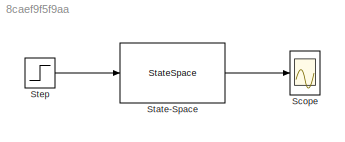
MODEL slx_8caef9f5f9aa
KIND model
CONFIG AbsTol = auto
CONFIG EnableMultiTasking = off
CONFIG FixedStep = auto
CONFIG MaxStep = auto
CONFIG MinStep = auto
CONFIG RelTol = 1e-3
CONFIG SampleTimeConstraint = Unconstrained
CONFIG SolverName = VariableStepAuto
CONFIG StartTime = 0.0
CONFIG StopTime = 10.0
BLOCK [Scope] Scope
  Floating = off
  NumInputPorts = 1
  ScopeSpecificationString = Simulink.scopes.TimeScopeBlockCfg('CurrentConfiguration', extmgr.ConfigurationSet(extmgr.Configuration('Core','General UI',true),extmgr.Configuration('Core','Source UI',true),extmgr.Configuration('Sources','WiredSimulink',true),extmgr.Configuration('Visuals','Time Domain',true,'SerializedDisplays',{struct('MinYLimReal','-0.66056','MaxYLimReal','5.94507','YLabelReal','','MinYLimMag','0.00000','MaxY...<+1331ch>
BLOCK [StateSpace] State-Space
  A = A
  B = B'
  C = C
  D = D
  InitialCondition = 0
BLOCK [Step] Step
  SampleTime = 0
LINE State-Space:1 -> Scope:1
LINE Step:1 -> State-Space:1
